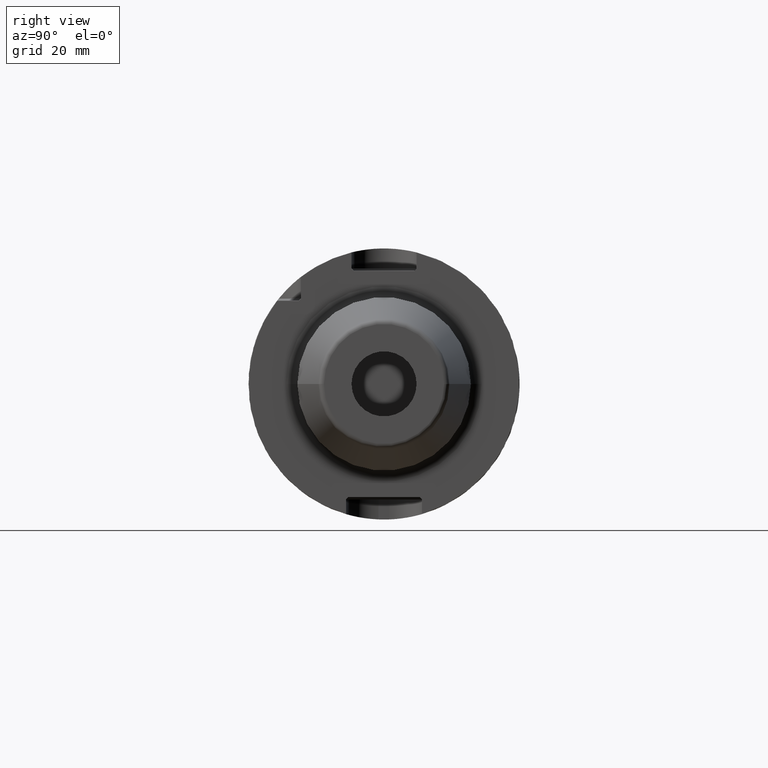
[diagram: clean part render]
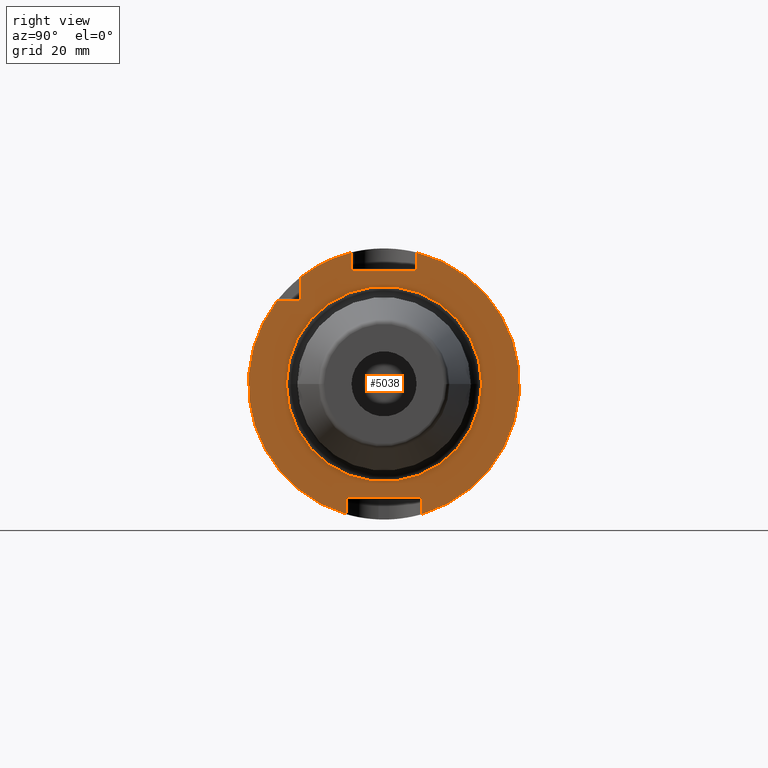
[diagram: same view with one face highlighted and labeled with its STEP entity id]
A machine part, right view. The second image highlights one B-rep face of the part: STEP entity #5038.
In plain terms, the highlighted planar face has unit normal (1, 0, 0).
Its self-contained STEP definition (entity closure, byte-faithful):
#1010=CARTESIAN_POINT('',(2.595E1,0.E0,0.E0));
#1011=DIRECTION('',(1.E0,0.E0,0.E0));
#1012=DIRECTION('',(0.E0,-2.407E-1,9.705995621264E-1));
#1013=AXIS2_PLACEMENT_3D('',#1010,#1011,#1012);
#1019=CARTESIAN_POINT('',(2.595E1,0.E0,0.E0));
#1020=DIRECTION('',(1.E0,0.E0,0.E0));
#1021=DIRECTION('',(0.E0,-7.893060243024E-1,6.14E-1));
#1022=AXIS2_PLACEMENT_3D('',#1019,#1020,#1021);
#1046=CARTESIAN_POINT('',(2.595E1,0.E0,0.E0));
#1047=DIRECTION('',(1.E0,0.E0,0.E0));
#1048=DIRECTION('',(0.E0,2.807E-1,-9.597955563556E-1));
#1049=AXIS2_PLACEMENT_3D('',#1046,#1047,#1048);
#1380=DIRECTION('',(0.E0,7.071067811865E-1,-7.071067811865E-1));
#1381=VECTOR('',#1380,5.656854249492E-1);
#1382=CARTESIAN_POINT('',(2.595E1,6.6175E0,-2.09E1));
#1383=LINE('',#1382,#1381);
#1495=DIRECTION('',(0.E0,-7.071067811865E-1,-7.071067811865E-1));
#1496=VECTOR('',#1495,5.656854249492E-1);
#1497=CARTESIAN_POINT('',(2.595E1,6.0175E0,2.13E1));
#1498=LINE('',#1497,#1496);
#1617=DIRECTION('',(0.E0,7.071067811866E-1,7.071067811865E-1));
#1618=VECTOR('',#1617,5.656854249492E-1);
#1619=CARTESIAN_POINT('',(2.595E1,-7.0175E0,-2.13E1));
#1620=LINE('',#1619,#1618);
#1689=DIRECTION('',(0.E0,1.E0,0.E0));
#1690=VECTOR('',#1689,3.982650607559E0);
#1691=CARTESIAN_POINT('',(2.595E1,-1.973265060756E1,1.535E1));
#1692=LINE('',#1691,#1690);
#1693=DIRECTION('',(0.E0,0.E0,-1.E0));
#1694=VECTOR('',#1693,3.982650607559E0);
#1695=CARTESIAN_POINT('',(2.595E1,-1.535E1,1.973265060756E1));
#1696=LINE('',#1695,#1694);
#1697=DIRECTION('',(0.E0,0.E0,-1.E0));
#1698=VECTOR('',#1697,2.964989053161E0);
#1699=CARTESIAN_POINT('',(2.595E1,-6.0175E0,2.426498905316E1));
#1700=LINE('',#1699,#1698);
#1701=DIRECTION('',(0.E0,1.E0,0.E0));
#1702=VECTOR('',#1701,1.1235E1);
#1703=CARTESIAN_POINT('',(2.595E1,-5.6175E0,2.09E1));
#1704=LINE('',#1703,#1702);
#1705=DIRECTION('',(0.E0,0.E0,-1.E0));
#1706=VECTOR('',#1705,2.964989053161E0);
#1707=CARTESIAN_POINT('',(2.595E1,6.0175E0,2.426498905316E1));
#1708=LINE('',#1707,#1706);
#1709=DIRECTION('',(0.E0,0.E0,1.E0));
#1710=VECTOR('',#1709,2.694888908891E0);
#1711=CARTESIAN_POINT('',(2.595E1,7.0175E0,-2.399488890889E1));
#1712=LINE('',#1711,#1710);
#1713=DIRECTION('',(0.E0,-1.E0,0.E0));
#1714=VECTOR('',#1713,1.3235E1);
#1715=CARTESIAN_POINT('',(2.595E1,6.6175E0,-2.09E1));
#1716=LINE('',#1715,#1714);
#1717=DIRECTION('',(0.E0,0.E0,1.E0));
#1718=VECTOR('',#1717,2.694888908891E0);
#1719=CARTESIAN_POINT('',(2.595E1,-7.0175E0,-2.399488890889E1));
#1720=LINE('',#1719,#1718);
#1721=CARTESIAN_POINT('',(2.595E1,0.E0,0.E0));
#1722=DIRECTION('',(1.E0,0.E0,0.E0));
#1723=DIRECTION('',(0.E0,-1.E0,0.E0));
#1724=AXIS2_PLACEMENT_3D('',#1721,#1722,#1723);
#1726=CARTESIAN_POINT('',(2.595E1,0.E0,0.E0));
#1727=DIRECTION('',(1.E0,0.E0,0.E0));
#1728=DIRECTION('',(0.E0,1.E0,0.E0));
#1729=AXIS2_PLACEMENT_3D('',#1726,#1727,#1728);
#1854=DIRECTION('',(0.E0,-7.071067811865E-1,-7.071067811865E-1));
#1855=VECTOR('',#1854,5.656854249492E-1);
#1856=CARTESIAN_POINT('',(2.595E1,-1.535E1,1.575E1));
#1857=LINE('',#1856,#1855);
#1875=DIRECTION('',(0.E0,-7.071067811865E-1,7.071067811865E-1));
#1876=VECTOR('',#1875,5.656854249492E-1);
#1877=CARTESIAN_POINT('',(2.595E1,-5.6175E0,2.09E1));
#1878=LINE('',#1877,#1876);
#3034=CARTESIAN_POINT('',(2.595E1,-5.6175E0,2.09E1));
#3035=CARTESIAN_POINT('',(2.595E1,-6.0175E0,2.13E1));
#3036=VERTEX_POINT('',#3034);
#3037=VERTEX_POINT('',#3035);
#3038=CARTESIAN_POINT('',(2.595E1,6.0175E0,2.13E1));
#3039=CARTESIAN_POINT('',(2.595E1,5.6175E0,2.09E1));
#3040=VERTEX_POINT('',#3038);
#3041=VERTEX_POINT('',#3039);
#3066=CARTESIAN_POINT('',(2.595E1,6.6175E0,-2.09E1));
#3067=CARTESIAN_POINT('',(2.595E1,7.0175E0,-2.13E1));
#3068=VERTEX_POINT('',#3066);
#3069=VERTEX_POINT('',#3067);
#3070=CARTESIAN_POINT('',(2.595E1,-7.0175E0,-2.13E1));
#3071=CARTESIAN_POINT('',(2.595E1,-6.6175E0,-2.09E1));
#3072=VERTEX_POINT('',#3070);
#3073=VERTEX_POINT('',#3071);
#3084=CARTESIAN_POINT('',(2.595E1,-1.535E1,1.575E1));
#3085=CARTESIAN_POINT('',(2.595E1,-1.575E1,1.535E1));
#3086=VERTEX_POINT('',#3084);
#3087=VERTEX_POINT('',#3085);
#3112=CARTESIAN_POINT('',(2.595E1,-1.973265060756E1,1.535E1));
#3113=VERTEX_POINT('',#3112);
#3114=CARTESIAN_POINT('',(2.595E1,-1.535E1,1.973265060756E1));
#3115=VERTEX_POINT('',#3114);
#3152=CARTESIAN_POINT('',(2.595E1,6.0175E0,2.426498905316E1));
#3153=VERTEX_POINT('',#3152);
#3154=CARTESIAN_POINT('',(2.595E1,-7.0175E0,-2.399488890889E1));
#3155=VERTEX_POINT('',#3154);
#3156=CARTESIAN_POINT('',(2.595E1,-6.0175E0,2.426498905316E1));
#3157=VERTEX_POINT('',#3156);
#3158=CARTESIAN_POINT('',(2.595E1,7.0175E0,-2.399488890889E1));
#3159=VERTEX_POINT('',#3158);
#3222=CARTESIAN_POINT('',(2.595E1,-1.8E1,-2.039594003153E-14));
#3223=CARTESIAN_POINT('',(2.595E1,1.8E1,1.019797001577E-14));
#3224=VERTEX_POINT('',#3222);
#3225=VERTEX_POINT('',#3223);
#5005=CARTESIAN_POINT('',(2.595E1,0.E0,0.E0));
#5006=DIRECTION('',(1.E0,0.E0,0.E0));
#5007=DIRECTION('',(0.E0,-1.E0,0.E0));
#5008=AXIS2_PLACEMENT_3D('',#5005,#5006,#5007);
#5009=PLANE('',#5008);
#5011=ORIENTED_EDGE('',*,*,#5010,.T.);
#5013=ORIENTED_EDGE('',*,*,#5012,.F.);
#5015=ORIENTED_EDGE('',*,*,#5014,.F.);
#5016=ORIENTED_EDGE('',*,*,#4281,.F.);
#5017=ORIENTED_EDGE('',*,*,#4470,.T.);
#5019=ORIENTED_EDGE('',*,*,#5018,.F.);
#5020=ORIENTED_EDGE('',*,*,#4813,.T.);
#5021=ORIENTED_EDGE('',*,*,#4796,.F.);
#5022=ORIENTED_EDGE('',*,*,#4767,.F.);
#5023=ORIENTED_EDGE('',*,*,#4313,.F.);
#5024=ORIENTED_EDGE('',*,*,#4692,.T.);
#5025=ORIENTED_EDGE('',*,*,#4662,.F.);
#5026=ORIENTED_EDGE('',*,*,#4629,.T.);
#5027=ORIENTED_EDGE('',*,*,#4892,.F.);
#5028=ORIENTED_EDGE('',*,*,#4999,.F.);
#5029=ORIENTED_EDGE('',*,*,#4293,.F.);
#5030=EDGE_LOOP('',(#5011,#5013,#5015,#5016,#5017,#5019,#5020,#5021,#5022,#5023,
#5024,#5025,#5026,#5027,#5028,#5029));
#5031=FACE_OUTER_BOUND('',#5030,.F.);
#5033=ORIENTED_EDGE('',*,*,#5032,.T.);
#5035=ORIENTED_EDGE('',*,*,#5034,.T.);
#5036=EDGE_LOOP('',(#5033,#5035));
#5037=FACE_BOUND('',#5036,.F.);
#5038=ADVANCED_FACE('',(#5031,#5037),#5009,.T.);
#1014=CIRCLE('',#1013,2.5E1);
#1023=CIRCLE('',#1022,2.5E1);
#1050=CIRCLE('',#1049,2.5E1);
#1725=CIRCLE('',#1724,1.8E1);
#1730=CIRCLE('',#1729,1.8E1);
#4281=EDGE_CURVE('',#3157,#3115,#1014,.T.);
#4293=EDGE_CURVE('',#3113,#3155,#1023,.T.);
#4313=EDGE_CURVE('',#3159,#3153,#1050,.T.);
#4470=EDGE_CURVE('',#3157,#3037,#1700,.T.);
#4629=EDGE_CURVE('',#3068,#3073,#1716,.T.);
#4662=EDGE_CURVE('',#3068,#3069,#1383,.T.);
#4692=EDGE_CURVE('',#3159,#3069,#1712,.T.);
#4767=EDGE_CURVE('',#3153,#3040,#1708,.T.);
#4796=EDGE_CURVE('',#3040,#3041,#1498,.T.);
#4813=EDGE_CURVE('',#3036,#3041,#1704,.T.);
#4892=EDGE_CURVE('',#3072,#3073,#1620,.T.);
#4999=EDGE_CURVE('',#3155,#3072,#1720,.T.);
#5010=EDGE_CURVE('',#3113,#3087,#1692,.T.);
#5012=EDGE_CURVE('',#3086,#3087,#1857,.T.);
#5014=EDGE_CURVE('',#3115,#3086,#1696,.T.);
#5018=EDGE_CURVE('',#3036,#3037,#1878,.T.);
#5032=EDGE_CURVE('',#3224,#3225,#1725,.T.);
#5034=EDGE_CURVE('',#3225,#3224,#1730,.T.);